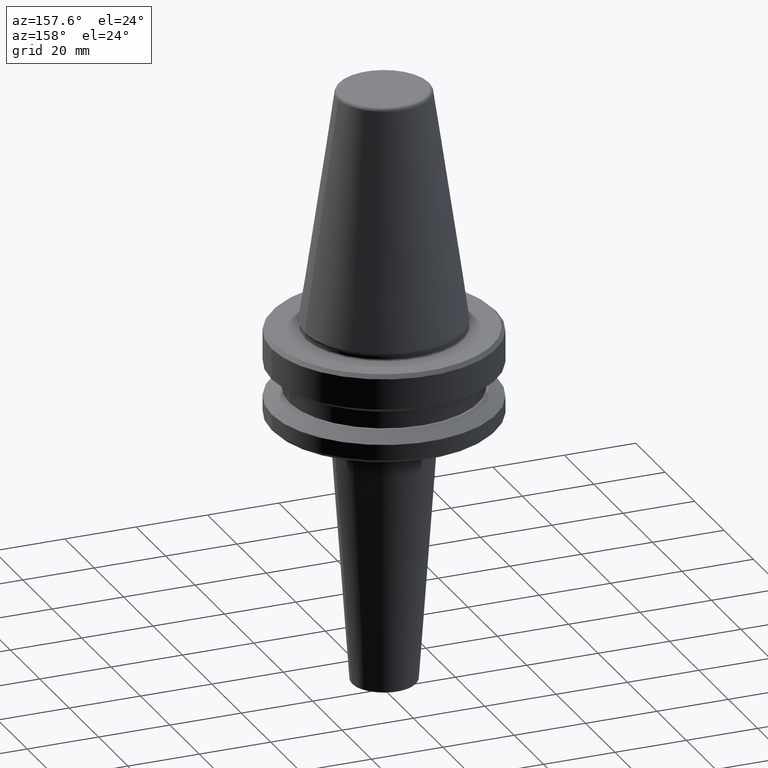
[diagram: clean part render]
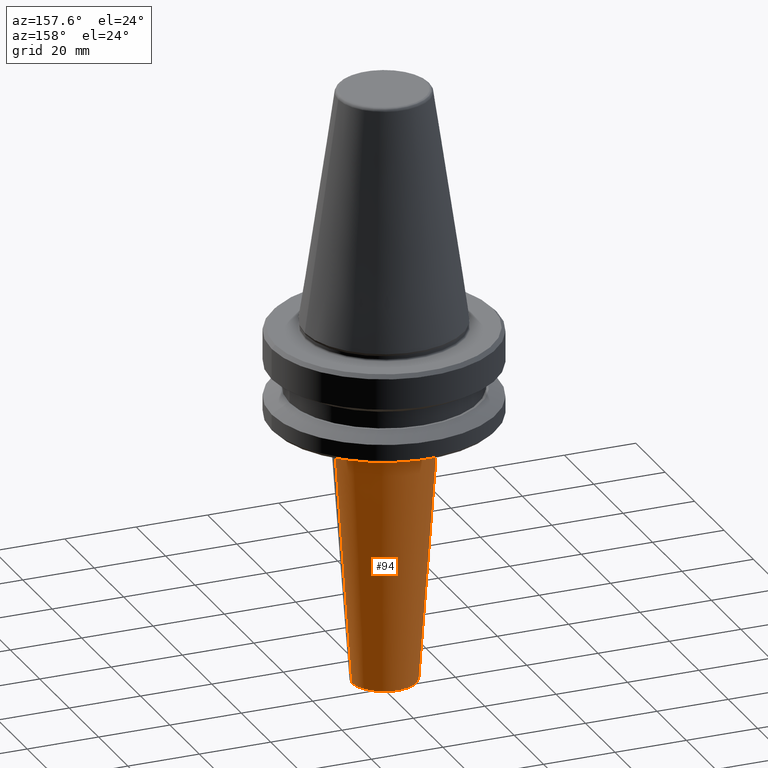
[diagram: same view with one face highlighted and labeled with its STEP entity id]
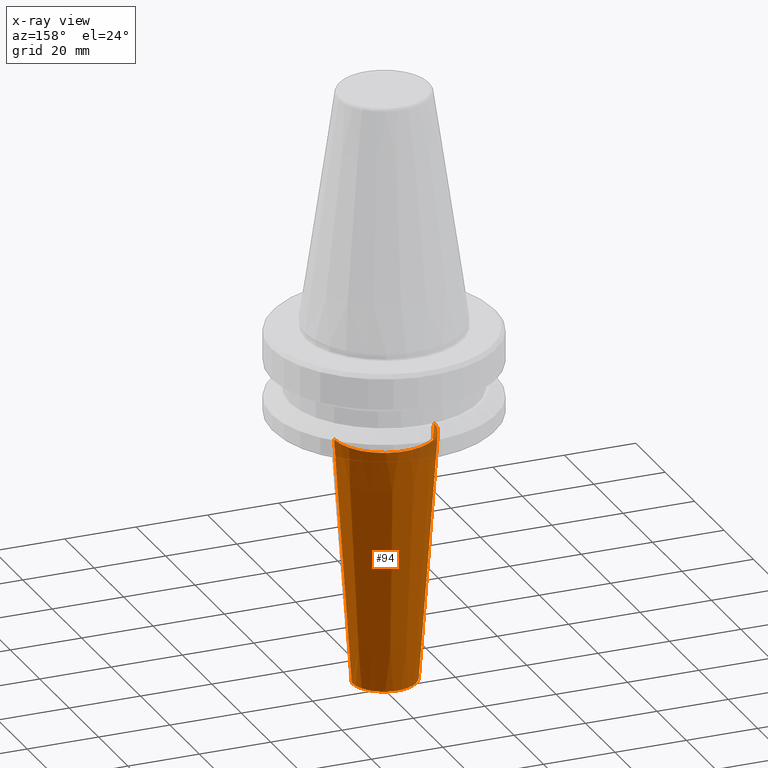
[diagram: x-ray of the same camera — body ghosted, the highlighted face saturated]
A machine part, auxiliary view. The second image highlights one B-rep face of the part: STEP entity #94.
The next image is the same camera in x-ray: the body ghosted, the highlighted face saturated — about 3% of this face is hidden behind the body in this view.
In plain terms, the highlighted conical surface has half-angle 4.065 deg.
Its self-contained STEP definition (entity closure, byte-faithful):
#14 = VERTEX_POINT ( 'NONE', #81 ) ;
#21 = DIRECTION ( 'NONE',  ( -0.0000000000000000000, -0.0000000000000000000, 1.000000000000000000 ) ) ;
#25 = DIRECTION ( 'NONE',  ( 1.000000000000000000, 0.0000000000000000000, 0.0000000000000000000 ) ) ;
#31 = FACE_OUTER_BOUND ( 'NONE', #375, .T. ) ;
#33 = EDGE_CURVE ( 'NONE', #722, #586, #1043, .T. ) ;
#38 = CARTESIAN_POINT ( 'NONE',  ( 14.00000000000000500, 0.0000000000000000000, -97.04555044078098500 ) ) ;
#81 = CARTESIAN_POINT ( 'NONE',  ( -14.00000000000000500, 2.019896960283764800E-015, -97.04555044078098500 ) ) ;
#94 = ADVANCED_FACE ( 'NONE', ( #31 ), #647, .T. ) ;
#112 = DIRECTION ( 'NONE',  ( 0.07088991184540963100, 0.0000000000000000000, 0.9974841454371843300 ) ) ;
#207 = EDGE_CURVE ( 'NONE', #586, #14, #1017, .T. ) ;
#253 = LINE ( 'NONE', #38, #654 ) ;
#285 = CARTESIAN_POINT ( 'NONE',  ( 0.0000000000000000000, 0.0000000000000000000, -166.9354449559310200 ) ) ;
#289 = CARTESIAN_POINT ( 'NONE',  ( 0.0000000000000000000, 0.0000000000000000000, -97.04555044078098500 ) ) ;
#336 = DIRECTION ( 'NONE',  ( -0.0000000000000000000, -0.0000000000000000000, 1.000000000000000000 ) ) ;
#337 = DIRECTION ( 'NONE',  ( 1.000000000000000000, 0.0000000000000000000, 0.0000000000000000000 ) ) ;
#340 = DIRECTION ( 'NONE',  ( 1.000000000000000000, 0.0000000000000000000, 0.0000000000000000000 ) ) ;
#350 = VECTOR ( 'NONE', #631, 1000.000000000000100 ) ;
#375 = EDGE_LOOP ( 'NONE', ( #1018, #970, #988, #635 ) ) ;
#432 = EDGE_CURVE ( 'NONE', #722, #892, #253, .T. ) ;
#440 = AXIS2_PLACEMENT_3D ( 'NONE', #285, #505, #337 ) ;
#486 = CARTESIAN_POINT ( 'NONE',  ( 14.00000000000000500, 0.0000000000000000000, -97.04555044078098500 ) ) ;
#505 = DIRECTION ( 'NONE',  ( -0.0000000000000000000, -0.0000000000000000000, 1.000000000000000000 ) ) ;
#575 = EDGE_CURVE ( 'NONE', #892, #14, #1006, .T. ) ;
#581 = CARTESIAN_POINT ( 'NONE',  ( -9.033015327885255600, 1.106225330794365700E-015, -166.9354449559310200 ) ) ;
#586 = VERTEX_POINT ( 'NONE', #581 ) ;
#631 = DIRECTION ( 'NONE',  ( -0.07088991184540963100, 8.681510363331895700E-018, 0.9974841454371843300 ) ) ;
#635 = ORIENTED_EDGE ( 'NONE', *, *, #432, .F. ) ;
#645 = AXIS2_PLACEMENT_3D ( 'NONE', #289, #336, #340 ) ;
#647 = CONICAL_SURFACE ( 'NONE', #924, 14.00000000000000500, 0.07094942130596773600 ) ;
#654 = VECTOR ( 'NONE', #112, 1000.000000000000100 ) ;
#682 = CARTESIAN_POINT ( 'NONE',  ( 0.0000000000000000000, 0.0000000000000000000, -97.04555044078098500 ) ) ;
#722 = VERTEX_POINT ( 'NONE', #795 ) ;
#795 = CARTESIAN_POINT ( 'NONE',  ( 9.033015327885255600, 0.0000000000000000000, -166.9354449559310200 ) ) ;
#807 = CARTESIAN_POINT ( 'NONE',  ( -14.00000000000000500, 1.714505518806295000E-015, -97.04555044078098500 ) ) ;
#892 = VERTEX_POINT ( 'NONE', #486 ) ;
#924 = AXIS2_PLACEMENT_3D ( 'NONE', #682, #21, #25 ) ;
#970 = ORIENTED_EDGE ( 'NONE', *, *, #207, .T. ) ;
#988 = ORIENTED_EDGE ( 'NONE', *, *, #575, .F. ) ;
#1006 = CIRCLE ( 'NONE', #645, 14.00000000000000500 ) ;
#1017 = LINE ( 'NONE', #807, #350 ) ;
#1018 = ORIENTED_EDGE ( 'NONE', *, *, #33, .T. ) ;
#1043 = CIRCLE ( 'NONE', #440, 9.033015327885266300 ) ;